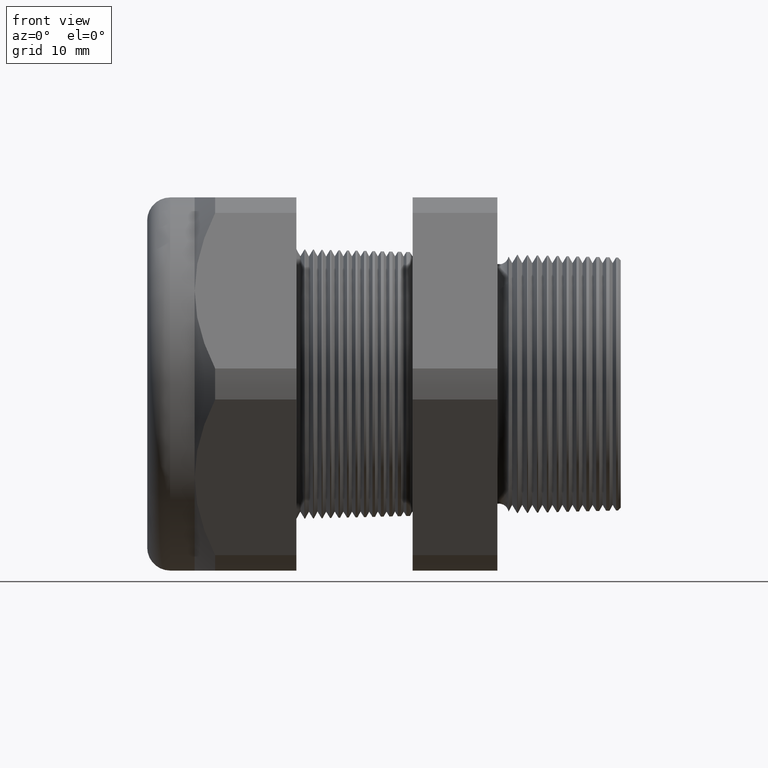
[diagram: clean part render]
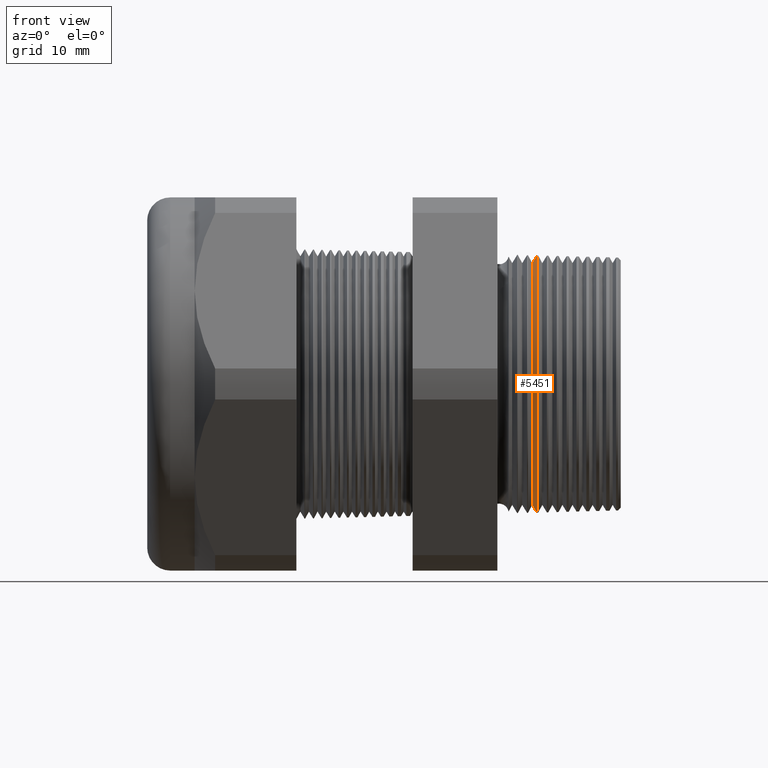
[diagram: same view with one face highlighted and labeled with its STEP entity id]
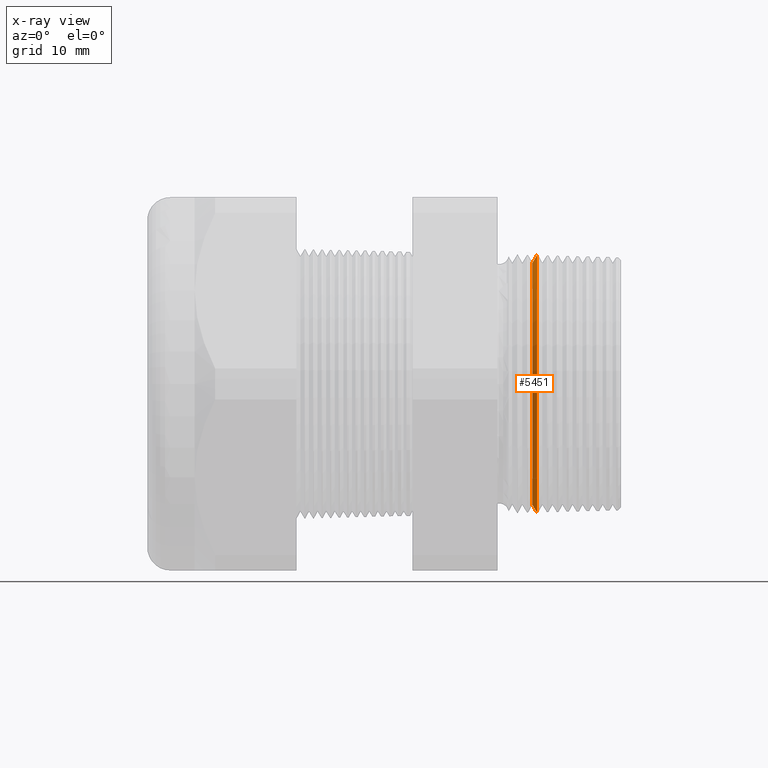
[diagram: x-ray of the same camera — body ghosted, the highlighted face saturated]
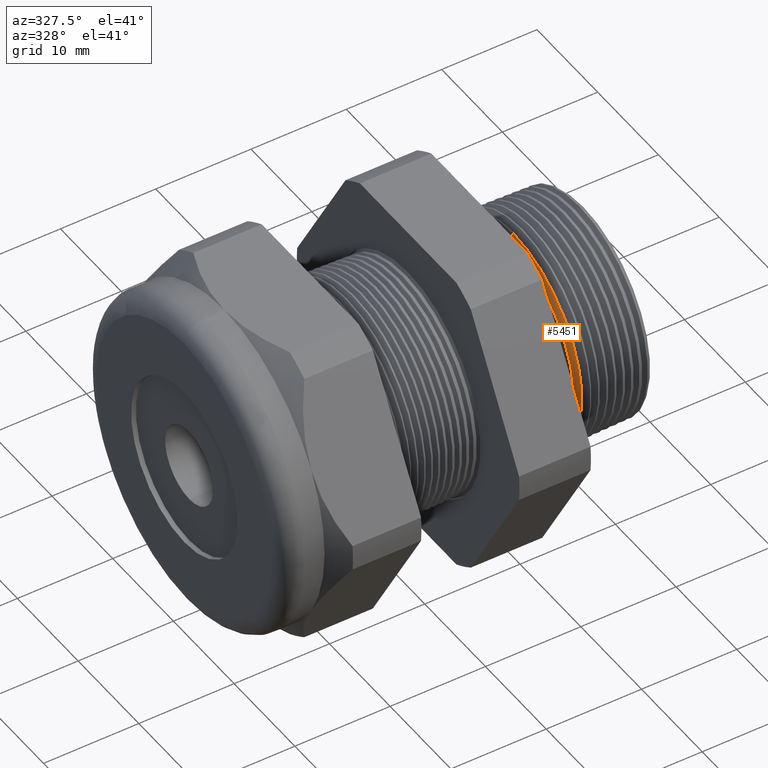
[diagram: same view with one face highlighted and labeled with its STEP entity id]
A machine part, front view. The second image highlights one B-rep face of the part: STEP entity #5451.
The next image is the same camera in x-ray: the body ghosted, the highlighted face saturated — about 0% of this face is hidden behind the body in this view.
A second angle (auxiliary view) of the same face is appended — the face is thin or edge-on in the first view.
In plain terms, the highlighted conical surface has half-angle 58.5 deg.
Its self-contained STEP definition (entity closure, byte-faithful):
#1603 = DIRECTION ( 'NONE',  ( 0.5224985647159347000, 0.0000000000000000000, -0.8526401643541008400 ) ) ;
#1604 = VECTOR ( 'NONE', #1603, 39.37007874015748100 ) ;
#1605 = CARTESIAN_POINT ( 'NONE',  ( -0.1884707356790752100, 0.0000000000000000000, -0.4212184895733915900 ) ) ;
#1606 = LINE ( 'NONE', #1605, #1604 ) ;
#1621 = CARTESIAN_POINT ( 'NONE',  ( -0.1884707356790752100, 5.327770295935951800E-017, -0.4212184895733915900 ) ) ;
#1647 = CARTESIAN_POINT ( 'NONE',  ( -0.1720291532523846000, 5.487014229667634400E-017, -0.4480487135954552300 ) ) ;
#1653 = CARTESIAN_POINT ( 'NONE',  ( -0.1720291532523846000, 0.0000000000000000000, 0.4480487135954552300 ) ) ;
#1654 = DIRECTION ( 'NONE',  ( 0.5224985647159347000, 1.044183048100722800E-016, 0.8526401643541008400 ) ) ;
#1655 = VECTOR ( 'NONE', #1654, 39.37007874015748100 ) ;
#1656 = CARTESIAN_POINT ( 'NONE',  ( -0.1884707356790752100, 5.158438749977368000E-017, 0.4212184895733915900 ) ) ;
#1657 = LINE ( 'NONE', #1656, #1655 ) ;
#1658 = CARTESIAN_POINT ( 'NONE',  ( -0.1884707356790752100, 0.0000000000000000000, 0.4212184895733915900 ) ) ;
#2213 = DIRECTION ( 'NONE',  ( 0.0000000000000000000, 0.0000000000000000000, -1.000000000000000000 ) ) ;
#2214 = DIRECTION ( 'NONE',  ( -1.000000000000000000, 0.0000000000000000000, 0.0000000000000000000 ) ) ;
#2215 = CARTESIAN_POINT ( 'NONE',  ( -0.1720291532523846000, 0.0000000000000000000, 0.0000000000000000000 ) ) ;
#2216 = AXIS2_PLACEMENT_3D ( 'NONE', #2215, #2214, #2213 ) ;
#2217 = CIRCLE ( 'NONE', #2216, 0.4480487135954552300 ) ;
#3776 = CARTESIAN_POINT ( 'NONE',  ( -0.1884707356790752100, 0.0000000000000000000, 0.0000000000000000000 ) ) ;
#3829 = DIRECTION ( 'NONE',  ( 0.0000000000000000000, 0.0000000000000000000, -1.000000000000000000 ) ) ;
#3830 = DIRECTION ( 'NONE',  ( 1.000000000000000000, 0.0000000000000000000, 0.0000000000000000000 ) ) ;
#3831 = CARTESIAN_POINT ( 'NONE',  ( -0.1884707356790752100, 0.0000000000000000000, 0.0000000000000000000 ) ) ;
#3832 = AXIS2_PLACEMENT_3D ( 'NONE', #3831, #3830, #3829 ) ;
#3834 = CONICAL_SURFACE ( 'NONE', #3832, 0.4212184895733915900, 1.021017612416699400 ) ;
#3835 = FACE_OUTER_BOUND ( 'NONE', #5452, .T. ) ;
#3836 = DIRECTION ( 'NONE',  ( 0.0000000000000000000, 0.0000000000000000000, -1.000000000000000000 ) ) ;
#3837 = DIRECTION ( 'NONE',  ( 1.000000000000000000, 0.0000000000000000000, 0.0000000000000000000 ) ) ;
#3838 = AXIS2_PLACEMENT_3D ( 'NONE', #3776, #3837, #3836 ) ;
#3839 = CIRCLE ( 'NONE', #3838, 0.4212184895733915900 ) ;
#4208 = VERTEX_POINT ( 'NONE', #1621 ) ;
#4215 = EDGE_CURVE ( 'NONE', #4208, #4224, #1606, .T. ) ;
#4218 = VERTEX_POINT ( 'NONE', #1658 ) ;
#4220 = EDGE_CURVE ( 'NONE', #4218, #4221, #1657, .T. ) ;
#4221 = VERTEX_POINT ( 'NONE', #1653 ) ;
#4224 = VERTEX_POINT ( 'NONE', #1647 ) ;
#4527 = EDGE_CURVE ( 'NONE', #4224, #4221, #2217, .T. ) ;
#5448 = EDGE_CURVE ( 'NONE', #4218, #4208, #3839, .T. ) ;
#5451 = ADVANCED_FACE ( 'NONE', ( #3835 ), #3834, .T. ) ;
#5452 = EDGE_LOOP ( 'NONE', ( #5453, #5503, #5504, #5505 ) ) ;
#5453 = ORIENTED_EDGE ( 'NONE', *, *, #4220, .F. ) ;
#5503 = ORIENTED_EDGE ( 'NONE', *, *, #5448, .T. ) ;
#5504 = ORIENTED_EDGE ( 'NONE', *, *, #4215, .T. ) ;
#5505 = ORIENTED_EDGE ( 'NONE', *, *, #4527, .T. ) ;